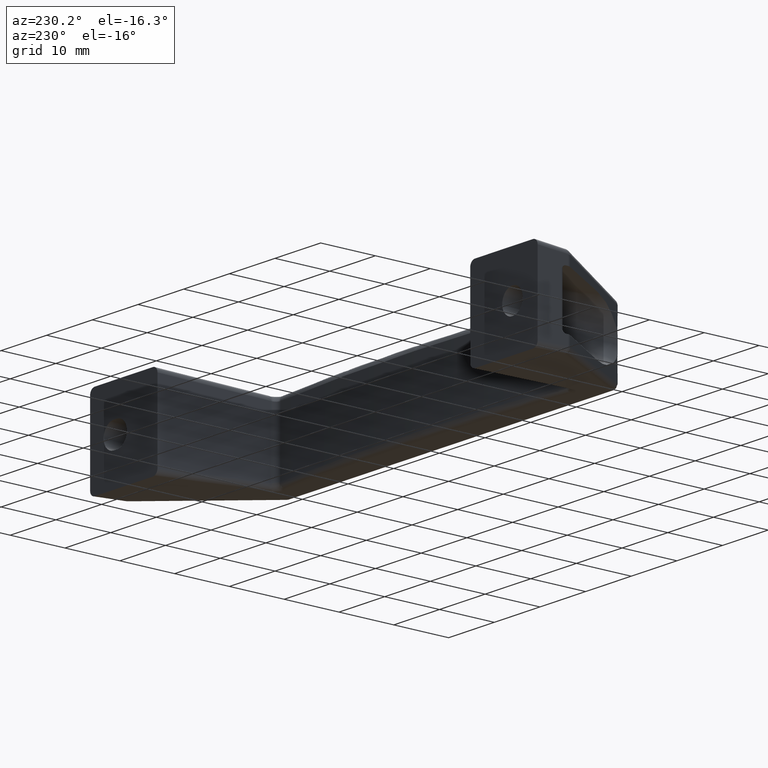
[diagram: clean part render]
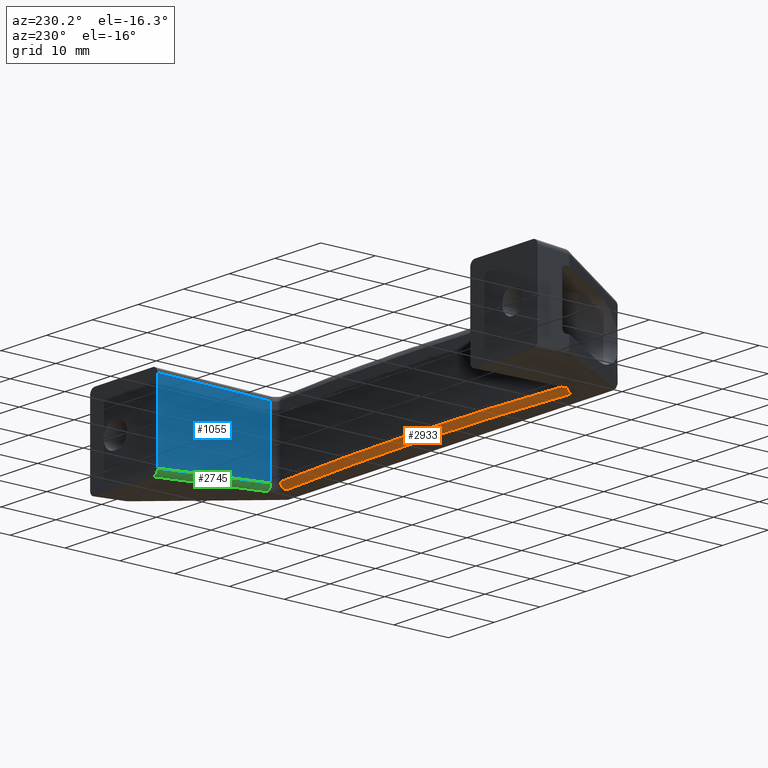
[diagram: same view with three faces highlighted in distinct colors, each labeled with its STEP entity id]
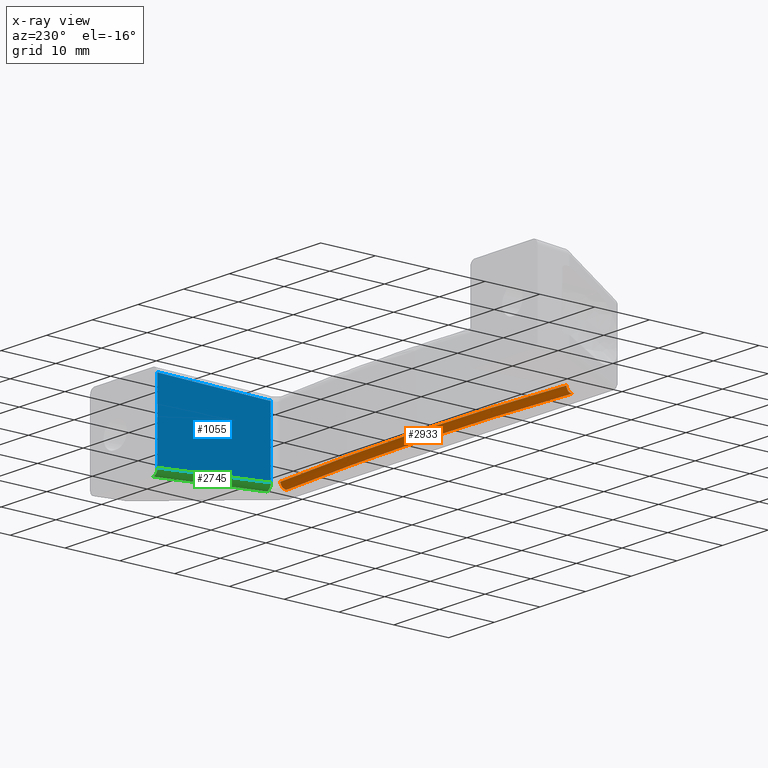
[diagram: x-ray of the same camera — body ghosted, the three highlighted faces saturated]
A machine part, auxiliary view with three faces highlighted in distinct colors.
The next image is the same camera in x-ray (body ghosted, the three faces saturated) — at least one of them is partly hidden behind the body in this view.
Their STEP definitions:

[orange] entity #2933 — the highlighted face is a freeform B-spline surface patch.
#1072=CARTESIAN_POINT('',(12.174453842300000,-20.004661307811201,-5.898030329352320));
#1073=VERTEX_POINT('',#1072);
#1133=CARTESIAN_POINT('',(74.825546157680094,-20.004661307809599,-5.898030329352539));
#1134=VERTEX_POINT('',#1133);
#1140=CARTESIAN_POINT('',(74.825546157680094,-20.004661307809599,-5.898030329352539));
#1141=CARTESIAN_POINT('',(43.499999999988894,-17.189678623993789,-6.045135814842300));
#1142=CARTESIAN_POINT('',(12.174453842297890,-20.004661307811201,-5.898030329352306));
#1150=(BOUNDED_CURVE()B_SPLINE_CURVE(2,(#1140,#1141,#1142),.UNSPECIFIED.,.F.,.U.)CURVE()GEOMETRIC_REPRESENTATION_ITEM()QUASI_UNIFORM_CURVE()RATIONAL_B_SPLINE_CURVE((1.0,0.995986681977676,1.0))REPRESENTATION_ITEM(''));
#1151=EDGE_CURVE('',#1134,#1073,#1150,.T.);
#2824=CARTESIAN_POINT('',(74.736044597229693,-21.052983946030150,-6.896659864107100));
#2825=VERTEX_POINT('',#2824);
#2826=CARTESIAN_POINT('',(74.736044597229693,-21.052983946030150,-6.896659864107100));
#2827=CARTESIAN_POINT('',(74.750442437753364,-20.893216116384622,-6.905312816374012));
#2828=CARTESIAN_POINT('',(74.775417747155046,-20.612440394507711,-6.850993348497982));
#2829=CARTESIAN_POINT('',(74.800959835572129,-20.317416282528971,-6.645146970135839));
#2830=CARTESIAN_POINT('',(74.816018786351250,-20.137972121423392,-6.418731801932119));
#2831=CARTESIAN_POINT('',(74.824512125923690,-20.030786428214100,-6.176963368732364));
#2832=CARTESIAN_POINT('',(74.825983377891873,-20.004668814460690,-5.991011911274964));
#2833=CARTESIAN_POINT('',(74.825546157680094,-20.004661307809599,-5.898030329352539));
#2834=B_SPLINE_CURVE_WITH_KNOTS('',3,(#2826,#2827,#2828,#2829,#2830,#2831,#2832,#2833),.UNSPECIFIED.,.F.,.U.,(4,1,1,1,1,4),(0.000000255341407,0.481829430243613,0.836818729553199,1.065073847741866,1.344042884825693,1.622989351040485),.UNSPECIFIED.);
#2835=EDGE_CURVE('',#2825,#1134,#2834,.T.);
#2855=CARTESIAN_POINT('',(75.357794373327408,-21.123310314836807,-6.892974215292771));
#2856=CARTESIAN_POINT('',(75.150113763073335,-21.104647695966680,-6.893952281703358));
#2857=CARTESIAN_POINT('',(74.942433161214979,-21.085985077851010,-6.894930348074406));
#2858=CARTESIAN_POINT('',(53.966735619946604,-19.201064534383697,-6.993714847882478));
#2859=CARTESIAN_POINT('',(33.033264380034190,-19.201064534382088,-6.993714847882561));
#2860=CARTESIAN_POINT('',(12.057566838765720,-21.085985077852786,-6.894930348074312));
#2861=CARTESIAN_POINT('',(11.849886236907180,-21.104647695968509,-6.893952281703262));
#2862=CARTESIAN_POINT('',(11.642205626652892,-21.123310314838687,-6.892974215292672));
#2863=CARTESIAN_POINT('',(75.358450576484984,-21.116164449350315,-6.893348714233970));
#2864=CARTESIAN_POINT('',(75.150765905432380,-21.097501456213024,-6.894326800259067));
#2865=CARTESIAN_POINT('',(74.943081238590821,-21.078838463454158,-6.895304886264338));
#2866=CARTESIAN_POINT('',(53.966951578409343,-19.193878143991562,-6.994091470644010));
#2867=CARTESIAN_POINT('',(33.033048421571500,-19.193878143989998,-6.994091470644090));
#2868=CARTESIAN_POINT('',(12.056918761389893,-21.078838463455931,-6.895304886264245));
#2869=CARTESIAN_POINT('',(11.849234094548082,-21.097501456214847,-6.894326800258971));
#2870=CARTESIAN_POINT('',(11.641549423495286,-21.116164449352191,-6.893348714233872));
#2871=CARTESIAN_POINT('',(75.455321908153763,-20.061263238376835,-6.948633744064017));
#2872=CARTESIAN_POINT('',(75.247037909960738,-20.042543414718679,-6.949614808450529));
#2873=CARTESIAN_POINT('',(75.038753296411798,-20.023823535754538,-6.950595875735508));
#2874=CARTESIAN_POINT('',(53.998837147246299,-18.132830835827441,-7.049698603781105));
#2875=CARTESIAN_POINT('',(33.001162852734538,-18.132830835832408,-7.049698603780843));
#2876=CARTESIAN_POINT('',(11.961246703568857,-20.023823535756236,-6.950595875735417));
#2877=CARTESIAN_POINT('',(11.752962090019690,-20.042543414720377,-6.949614808450443));
#2878=CARTESIAN_POINT('',(11.544678091826450,-20.061263238378519,-6.948633744063929));
#2879=CARTESIAN_POINT('',(75.450363924483895,-20.060808749693287,-5.887865628509621));
#2880=CARTESIAN_POINT('',(75.242080071758892,-20.042091923542902,-5.888843724727704));
#2881=CARTESIAN_POINT('',(75.033796223257085,-20.023375097772036,-5.889821820925959));
#2882=CARTESIAN_POINT('',(53.997149277969712,-18.132977649719539,-5.988609434796080));
#2883=CARTESIAN_POINT('',(33.002850722011019,-18.132977649720097,-5.988609434795652));
#2884=CARTESIAN_POINT('',(11.966203776723564,-20.023375097773787,-5.889821820925871));
#2885=CARTESIAN_POINT('',(11.757919928221503,-20.042091923544696,-5.888843724727618));
#2886=CARTESIAN_POINT('',(11.549636075496304,-20.060808749695109,-5.887865628509538));
#2887=CARTESIAN_POINT('',(75.450330339268518,-20.060805671002168,-5.880680020808030));
#2888=CARTESIAN_POINT('',(75.242046487579202,-20.042088865161379,-5.881658107679690));
#2889=CARTESIAN_POINT('',(75.033762644310045,-20.023372060077246,-5.882636194511811));
#2890=CARTESIAN_POINT('',(53.997137846163199,-18.132978644078548,-5.981422760883978));
#2891=CARTESIAN_POINT('',(33.002862153817560,-18.132978644079074,-5.981422760883549));
#2892=CARTESIAN_POINT('',(11.966237355670597,-20.023372060079005,-5.882636194511723));
#2893=CARTESIAN_POINT('',(11.757953512401219,-20.042088865163169,-5.881658107679604));
#2894=CARTESIAN_POINT('',(11.549669660711706,-20.060805671003987,-5.880680020807945));
#2902=(BOUNDED_SURFACE()B_SPLINE_SURFACE(3,2,((#2855,#2863,#2871,#2879,#2887),(#2856,#2864,#2872,#2880,#2888),(#2857,#2865,#2873,#2881,#2889),(#2858,#2866,#2874,#2882,#2890),(#2859,#2867,#2875,#2883,#2891),(#2860,#2868,#2876,#2884,#2892),(#2861,#2869,#2877,#2885,#2893),(#2862,#2870,#2878,#2886,#2894)),.UNSPECIFIED.,.F.,.F.,.U.)B_SPLINE_SURFACE_WITH_KNOTS((4,2,2,4),(3,1,1,3),(0.0,0.627376253945315,63.365001648481353,63.992377902427343),(0.0,0.017185061818294,1.735691243622410,1.752876305440438),.UNSPECIFIED.)GEOMETRIC_REPRESENTATION_ITEM()RATIONAL_B_SPLINE_SURFACE(((1.006231321880206,1.003115660940103,0.688433905994262,1.003115660940055,1.006231321880110),(1.006231342219293,1.003115671109647,0.688432889039922,1.003115671109599,1.006231342219197),(1.006231362558380,1.003115681279190,0.688431872085582,1.003115681279142,1.006231362558284),(1.006233416806147,1.003116708403073,0.688329159697234,1.003116708403026,1.006233416806051),(1.006233416806147,1.003116708403073,0.688329159697233,1.003116708403026,1.006233416806051),(1.006231362558380,1.003115681279190,0.688431872085582,1.003115681279142,1.006231362558284),(1.006231342219293,1.003115671109647,0.688432889039922,1.003115671109599,1.006231342219197),(1.006231321880206,1.003115660940103,0.688433905994262,1.003115660940055,1.006231321880110)))REPRESENTATION_ITEM('')SURFACE());
#2903=CARTESIAN_POINT('',(12.263955402750559,-21.052983946031951,-6.896659864107011));
#2904=VERTEX_POINT('',#2903);
#2905=CARTESIAN_POINT('',(12.263955402750559,-21.052983946031951,-6.896659864107011));
#2906=CARTESIAN_POINT('',(12.254864548971909,-20.952098755148342,-6.901986986001650));
#2907=CARTESIAN_POINT('',(12.236685392195190,-20.748721289203889,-6.881434609988872));
#2908=CARTESIAN_POINT('',(12.209850040982690,-20.443223358015072,-6.750344339530077));
#2909=CARTESIAN_POINT('',(12.189944177666060,-20.210372552773549,-6.534052091727125));
#2910=CARTESIAN_POINT('',(12.176523909354630,-20.045412585441159,-6.236057692364622));
#2911=CARTESIAN_POINT('',(12.173849746570090,-20.004584801093191,-6.024842809119279));
#2912=CARTESIAN_POINT('',(12.174453842300000,-20.004661307811201,-5.898030329352320));
#2913=B_SPLINE_CURVE_WITH_KNOTS('',3,(#2905,#2906,#2907,#2908,#2909,#2910,#2911,#2912),.UNSPECIFIED.,.F.,.U.,(4,1,1,1,1,4),(0.000000255340224,0.304300110800105,0.608626390180351,0.988986009396183,1.242603546495705,1.622989351040606),.UNSPECIFIED.);
#2914=EDGE_CURVE('',#2904,#1073,#2913,.T.);
#2915=ORIENTED_EDGE('',*,*,#2914,.T.);
#2916=ORIENTED_EDGE('',*,*,#1151,.F.);
#2917=ORIENTED_EDGE('',*,*,#2835,.F.);
#2918=CARTESIAN_POINT('',(12.263955402750559,-21.052983946031951,-6.896659864107011));
#2919=CARTESIAN_POINT('',(43.499999999990791,-18.246044069882565,-7.043765349596852));
#2920=CARTESIAN_POINT('',(74.736044597231455,-21.052983946030110,-6.896659864106952));
#2928=(BOUNDED_CURVE()B_SPLINE_CURVE(2,(#2918,#2919,#2920),.UNSPECIFIED.,.F.,.U.)CURVE()GEOMETRIC_REPRESENTATION_ITEM()QUASI_UNIFORM_CURVE()RATIONAL_B_SPLINE_CURVE((1.0,0.995986681977701,1.0))REPRESENTATION_ITEM(''));
#2929=EDGE_CURVE('',#2904,#2825,#2928,.T.);
#2930=ORIENTED_EDGE('',*,*,#2929,.F.);
#2931=EDGE_LOOP('',(#2915,#2916,#2917,#2930));
#2932=FACE_OUTER_BOUND('',#2931,.T.);
#2933=ADVANCED_FACE('',(#2932),#2902,.T.);

[blue] entity #1055 — the highlighted face is a freeform B-spline surface patch.
#1020=CARTESIAN_POINT('',(75.818558093692474,-20.058791134222641,-7.692265662485614));
#1021=CARTESIAN_POINT('',(77.841885872146264,0.954271268293592,-7.692265662485614));
#1022=CARTESIAN_POINT('',(75.818558093692474,-20.058791134222641,7.692266037651579));
#1023=CARTESIAN_POINT('',(77.841885872146264,0.954271268293592,7.692266037651579));
#1024=B_SPLINE_SURFACE_WITH_KNOTS('',1,1,((#1020,#1022),(#1021,#1023)),.UNSPECIFIED.,.F.,.F.,.U.,(2,2),(2,2),(0.0,21.110249805037931),(0.0,15.384531700137190),.UNSPECIFIED.);
#1025=CARTESIAN_POINT('',(77.750000000000000,0.0,6.993604590958550));
#1026=VERTEX_POINT('',#1025);
#1027=CARTESIAN_POINT('',(77.750000000000000,0.0,-6.993604590958770));
#1028=VERTEX_POINT('',#1027);
#1029=CARTESIAN_POINT('',(77.750000000000000,0.0,6.993604590958550));
#1030=CARTESIAN_POINT('',(77.750000000000000,0.0,-6.993604590958770));
#1031=QUASI_UNIFORM_CURVE('',1,(#1029,#1030),.UNSPECIFIED.,.F.,.U.);
#1032=EDGE_CURVE('',#1026,#1028,#1031,.T.);
#1033=ORIENTED_EDGE('',*,*,#1032,.T.);
#1034=CARTESIAN_POINT('',(75.910443916497798,-19.104520378352198,-5.992379103661790));
#1035=VERTEX_POINT('',#1034);
#1036=CARTESIAN_POINT('',(77.750000000000000,0.0,-6.993604590958770));
#1037=CARTESIAN_POINT('',(75.910443916497798,-19.104520378352198,-5.992379103661790));
#1038=QUASI_UNIFORM_CURVE('',1,(#1036,#1037),.UNSPECIFIED.,.F.,.U.);
#1039=EDGE_CURVE('',#1028,#1035,#1038,.T.);
#1040=ORIENTED_EDGE('',*,*,#1039,.T.);
#1041=CARTESIAN_POINT('',(75.910443916497798,-19.104520378352198,5.992379103661460));
#1042=VERTEX_POINT('',#1041);
#1043=CARTESIAN_POINT('',(75.910443916497798,-19.104520378352198,5.992379103661460));
#1044=CARTESIAN_POINT('',(75.910443916497798,-19.104520378352198,-5.992379103661790));
#1045=QUASI_UNIFORM_CURVE('',1,(#1043,#1044),.UNSPECIFIED.,.F.,.U.);
#1046=EDGE_CURVE('',#1042,#1035,#1045,.T.);
#1047=ORIENTED_EDGE('',*,*,#1046,.F.);
#1048=CARTESIAN_POINT('',(75.910443916497798,-19.104520378352198,5.992379103661460));
#1049=CARTESIAN_POINT('',(77.750000000000000,0.0,6.993604590958550));
#1050=QUASI_UNIFORM_CURVE('',1,(#1048,#1049),.UNSPECIFIED.,.F.,.U.);
#1051=EDGE_CURVE('',#1042,#1026,#1050,.T.);
#1052=ORIENTED_EDGE('',*,*,#1051,.T.);
#1053=EDGE_LOOP('',(#1033,#1040,#1047,#1052));
#1054=FACE_OUTER_BOUND('',#1053,.T.);
#1055=ADVANCED_FACE('',(#1054),#1024,.F.);

[green] entity #2745 — the highlighted face is a freeform B-spline surface patch.
#1027=CARTESIAN_POINT('',(77.750000000000000,0.0,-6.993604590958770));
#1028=VERTEX_POINT('',#1027);
#1034=CARTESIAN_POINT('',(75.910443916497798,-19.104520378352198,-5.992379103661790));
#1035=VERTEX_POINT('',#1034);
#1036=CARTESIAN_POINT('',(77.750000000000000,0.0,-6.993604590958770));
#1037=CARTESIAN_POINT('',(75.910443916497798,-19.104520378352198,-5.992379103661790));
#1038=QUASI_UNIFORM_CURVE('',1,(#1036,#1037),.UNSPECIFIED.,.F.,.U.);
#1039=EDGE_CURVE('',#1028,#1035,#1038,.T.);
#1540=CARTESIAN_POINT('',(78.759664474064010,0.0,-8.0));
#1541=VERTEX_POINT('',#1540);
#1547=CARTESIAN_POINT('',(78.759664474064010,0.0,-8.0));
#1548=CARTESIAN_POINT('',(78.594668229889436,0.0,-8.000320422743114));
#1549=CARTESIAN_POINT('',(78.347738338045261,0.0,-7.937941950125574));
#1550=CARTESIAN_POINT('',(78.041664060884870,0.0,-7.723231579648155));
#1551=CARTESIAN_POINT('',(77.817391304767114,0.0,-7.430306944821435));
#1552=CARTESIAN_POINT('',(77.749714581812100,0.0,-7.150323309599737));
#1553=CARTESIAN_POINT('',(77.750000000000000,0.0,-6.993604590958770));
#1554=B_SPLINE_CURVE_WITH_KNOTS('',3,(#1547,#1548,#1549,#1550,#1551,#1552,#1553),.UNSPECIFIED.,.F.,.U.,(4,1,1,1,4),(-0.000001228622620,0.494720822003941,0.742099393003023,1.113104597367352,1.583091821979743),.UNSPECIFIED.);
#1555=EDGE_CURVE('',#1541,#1028,#1554,.T.);
#2710=CARTESIAN_POINT('',(75.865033192714108,-19.583907367350449,-5.928599310937480));
#2711=CARTESIAN_POINT('',(77.812707410097644,0.643462762925177,-6.988670860201288));
#2712=CARTESIAN_POINT('',(75.816359274429388,-19.637847514975327,-7.047267449343639));
#2713=CARTESIAN_POINT('',(77.764033491812924,0.589522615300301,-8.107338998607458));
#2714=CARTESIAN_POINT('',(76.929476202936442,-19.740610152045726,-6.962960642824390));
#2715=CARTESIAN_POINT('',(78.877150420319964,0.486759978229911,-8.023032192088207));
#2723=(BOUNDED_SURFACE()B_SPLINE_SURFACE(1,2,((#2710,#2712,#2714),(#2711,#2713,#2715)),.UNSPECIFIED.,.F.,.F.,.U.)B_SPLINE_SURFACE_WITH_KNOTS((2,2),(3,3),(0.0,20.348554959352420),(0.0,0.994550880197901),.UNSPECIFIED.)GEOMETRIC_REPRESENTATION_ITEM()RATIONAL_B_SPLINE_SURFACE(((1.0,0.664458471991837,0.996343188030608),(1.0,0.664458471991837,0.996343188030608)))REPRESENTATION_ITEM('')SURFACE());
#2724=CARTESIAN_POINT('',(76.905840114864901,-19.252702087115399,-6.991008638416370));
#2725=VERTEX_POINT('',#2724);
#2726=CARTESIAN_POINT('',(76.905840114864901,-19.252702087115399,-6.991008638416370));
#2727=CARTESIAN_POINT('',(76.758753709214204,-19.238589279567240,-6.991962742090261));
#2728=CARTESIAN_POINT('',(76.505672907318342,-19.211269318001779,-6.935653314859460));
#2729=CARTESIAN_POINT('',(76.185351238918997,-19.168910208452839,-6.715921795240143));
#2730=CARTESIAN_POINT('',(75.965698461090668,-19.131312400341120,-6.402081914492396));
#2731=CARTESIAN_POINT('',(75.909606144846563,-19.111742973721579,-6.131733674756835));
#2732=CARTESIAN_POINT('',(75.910443916497798,-19.104520378352198,-5.992379103661790));
#2733=B_SPLINE_CURVE_WITH_KNOTS('',3,(#2726,#2727,#2728,#2729,#2730,#2731,#2732),.UNSPECIFIED.,.F.,.U.,(4,1,1,1,4),(0.000000251099344,0.443213049757878,0.763340647994681,1.157265314341028,1.575852323306626),.UNSPECIFIED.);
#2734=EDGE_CURVE('',#2725,#1035,#2733,.T.);
#2735=ORIENTED_EDGE('',*,*,#2734,.T.);
#2736=ORIENTED_EDGE('',*,*,#1039,.F.);
#2737=ORIENTED_EDGE('',*,*,#1555,.F.);
#2738=CARTESIAN_POINT('',(76.905840114864901,-19.252702087115399,-6.991008638416370));
#2739=CARTESIAN_POINT('',(78.759664474064010,0.0,-8.0));
#2740=QUASI_UNIFORM_CURVE('',1,(#2738,#2739),.UNSPECIFIED.,.F.,.U.);
#2741=EDGE_CURVE('',#2725,#1541,#2740,.T.);
#2742=ORIENTED_EDGE('',*,*,#2741,.F.);
#2743=EDGE_LOOP('',(#2735,#2736,#2737,#2742));
#2744=FACE_OUTER_BOUND('',#2743,.T.);
#2745=ADVANCED_FACE('',(#2744),#2723,.T.);